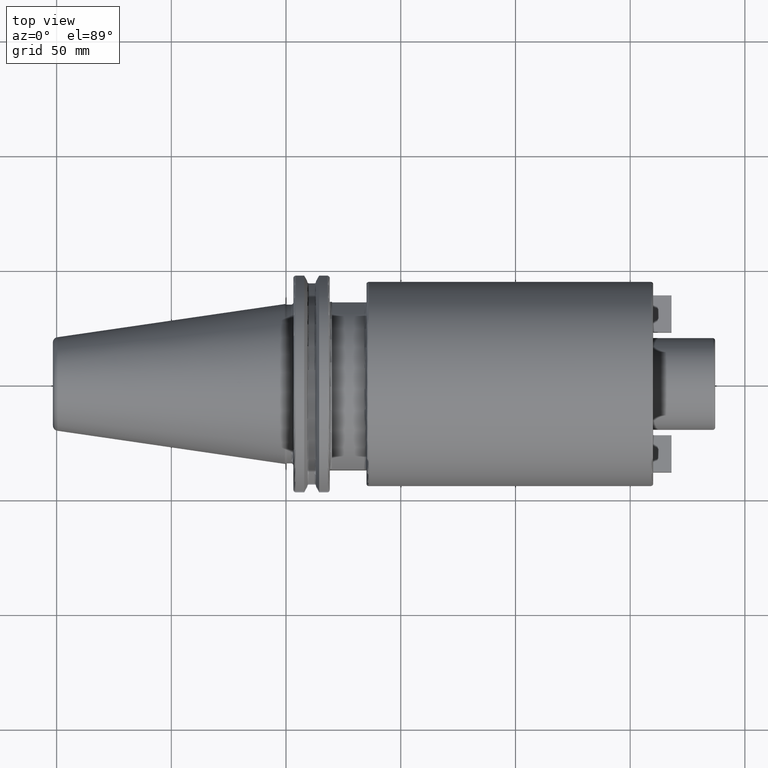
[diagram: clean part render]
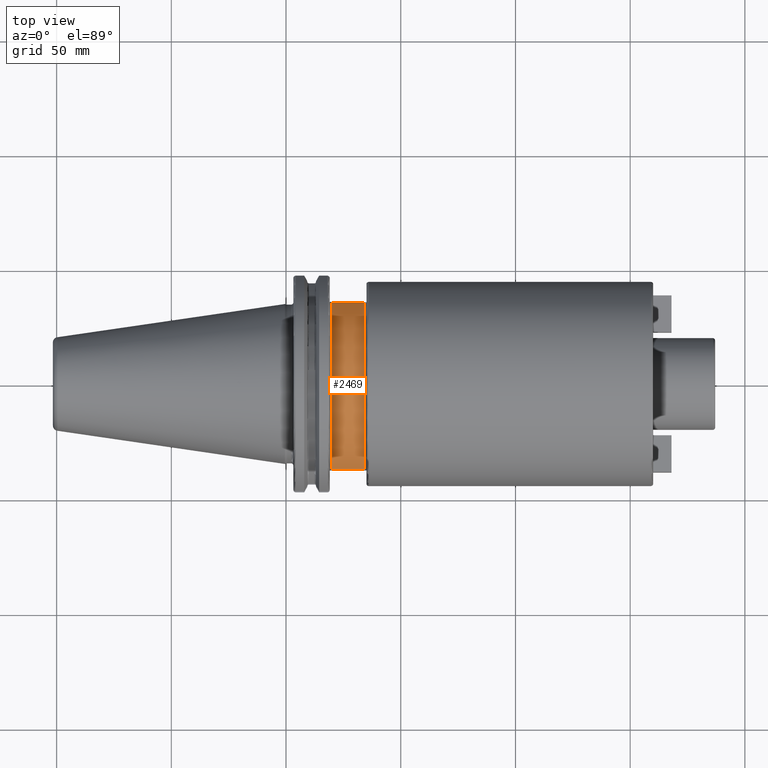
[diagram: same view with one face highlighted and labeled with its STEP entity id]
A machine part, top view. The second image highlights one B-rep face of the part: STEP entity #2469.
In plain terms, the highlighted cylindrical surface (partial cylindrical patch) has radius 39 mm, axis along (1, 0, 0).
Its self-contained STEP definition (entity closure, byte-faithful):
#248=CARTESIAN_POINT('',(2.005E1,0.E0,0.E0));
#249=DIRECTION('',(1.E0,0.E0,0.E0));
#250=DIRECTION('',(0.E0,9.051282051282E-1,4.251387212210E-1));
#251=AXIS2_PLACEMENT_3D('',#248,#249,#250);
#277=DIRECTION('',(1.E0,0.E0,0.E0));
#278=VECTOR('',#277,1.4E1);
#279=CARTESIAN_POINT('',(2.005E1,-3.75E1,1.071214264281E1));
#280=LINE('',#279,#278);
#281=DIRECTION('',(1.E0,0.E0,0.E0));
#282=VECTOR('',#281,1.4E1);
#283=CARTESIAN_POINT('',(2.005E1,3.53E1,1.658041012762E1));
#284=LINE('',#283,#282);
#319=CARTESIAN_POINT('',(3.405E1,0.E0,0.E0));
#320=DIRECTION('',(-1.E0,0.E0,0.E0));
#321=DIRECTION('',(0.E0,-9.615384615385E-1,2.746703241747E-1));
#322=AXIS2_PLACEMENT_3D('',#319,#320,#321);
#2053=CARTESIAN_POINT('',(2.005E1,3.53E1,1.658041012762E1));
#2054=CARTESIAN_POINT('',(3.405E1,3.53E1,1.658041012762E1));
#2055=VERTEX_POINT('',#2053);
#2056=VERTEX_POINT('',#2054);
#2061=CARTESIAN_POINT('',(2.005E1,-3.75E1,1.071214264281E1));
#2062=CARTESIAN_POINT('',(3.405E1,-3.75E1,1.071214264281E1));
#2063=VERTEX_POINT('',#2061);
#2064=VERTEX_POINT('',#2062);
#2457=CARTESIAN_POINT('',(1.825E1,0.E0,0.E0));
#2458=DIRECTION('',(1.E0,0.E0,0.E0));
#2459=DIRECTION('',(0.E0,-1.E0,0.E0));
#2460=AXIS2_PLACEMENT_3D('',#2457,#2458,#2459);
#2461=CYLINDRICAL_SURFACE('',#2460,3.9E1);
#2463=ORIENTED_EDGE('',*,*,#2462,.F.);
#2464=ORIENTED_EDGE('',*,*,#2374,.F.);
#2465=ORIENTED_EDGE('',*,*,#2449,.F.);
#2466=ORIENTED_EDGE('',*,*,#2301,.T.);
#2467=EDGE_LOOP('',(#2463,#2464,#2465,#2466));
#2468=FACE_OUTER_BOUND('',#2467,.F.);
#2469=ADVANCED_FACE('',(#2468),#2461,.T.);
#252=CIRCLE('',#251,3.9E1);
#323=CIRCLE('',#322,3.9E1);
#2301=EDGE_CURVE('',#2055,#2056,#284,.T.);
#2374=EDGE_CURVE('',#2063,#2064,#280,.T.);
#2449=EDGE_CURVE('',#2055,#2063,#252,.T.);
#2462=EDGE_CURVE('',#2064,#2056,#323,.T.);